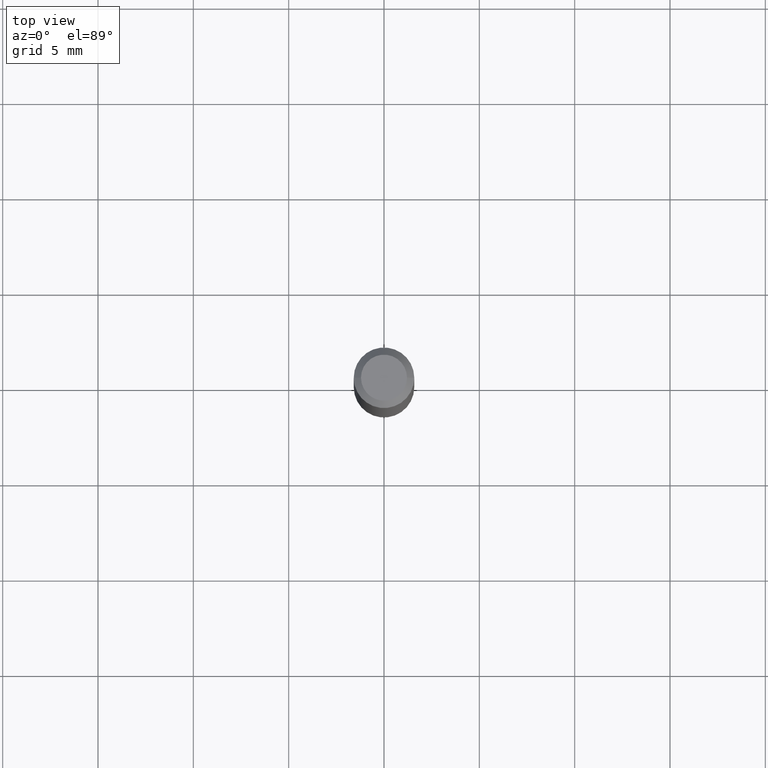
[diagram: clean part render]
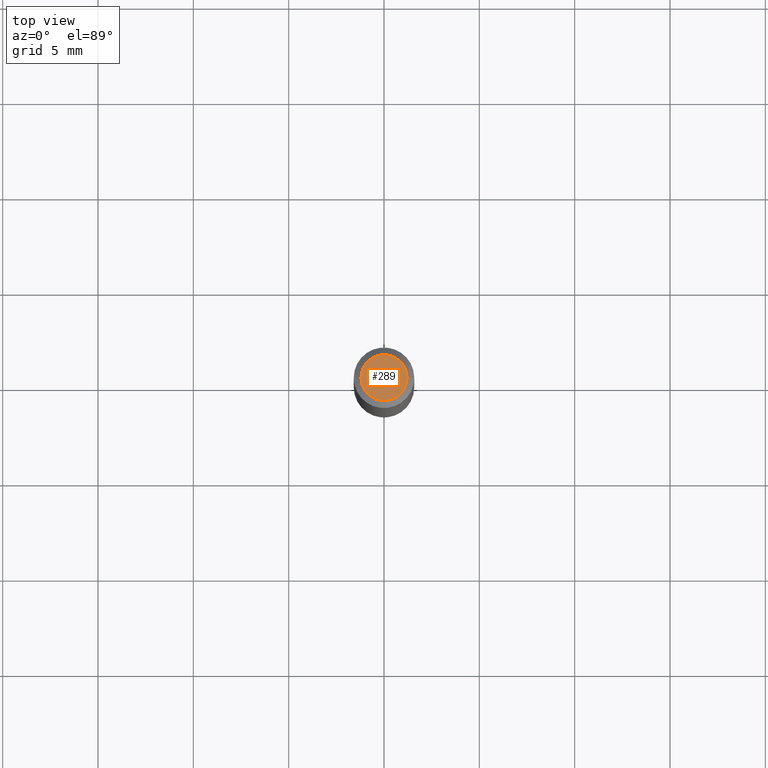
[diagram: same view with one face highlighted and labeled with its STEP entity id]
A machine part, top view. The second image highlights one B-rep face of the part: STEP entity #289.
In plain terms, the highlighted planar face has unit normal (0, -0, -1).
Its self-contained STEP definition (entity closure, byte-faithful):
#45 = CARTESIAN_POINT ( 'NONE',  ( -0.04750000000000000749, 3.578768372314221353E-16, 2.731847993664239060E-16 ) ) ;
#76 = VERTEX_POINT ( 'NONE', #384 ) ;
#107 = CARTESIAN_POINT ( 'NONE',  ( 3.316907271900976589E-16, 0.04750000000000000749, -2.925296391183627249E-17 ) ) ;
#111 = DIRECTION ( 'NONE',  ( 1.000000000000000000, -6.982962677686266711E-15, 4.852736867747365086E-29 ) ) ;
#136 = CIRCLE ( 'NONE', #430, 0.04750000000000000749 ) ;
#145 = PLANE ( 'NONE',  #279 ) ;
#150 = DIRECTION ( 'NONE',  ( -1.000000000000000000, 6.982962677686265922E-15, -4.876176775795935793E-29 ) ) ;
#218 = EDGE_CURVE ( 'NONE', #393, #76, #136, .T. ) ;
#277 = DIRECTION ( 'NONE',  ( 2.438088387897960049E-29, -3.491481338843145188E-15, -1.000000000000000000 ) ) ;
#279 = AXIS2_PLACEMENT_3D ( 'NONE', #107, #277, #150 ) ;
#280 = DIRECTION ( 'NONE',  ( -2.445468806185136597E-29, 3.491481338843145583E-15, 1.000000000000000000 ) ) ;
#289 = ADVANCED_FACE ( 'NONE', ( #357 ), #145, .F. ) ;
#332 = CIRCLE ( 'NONE', #451, 0.04750000000000000749 ) ;
#335 = CARTESIAN_POINT ( 'NONE',  ( -6.680649051745406845E-45, 9.538196290434862081E-31, 2.731847993664263218E-16 ) ) ;
#357 = FACE_OUTER_BOUND ( 'NONE', #463, .T. ) ;
#364 = DIRECTION ( 'NONE',  ( 1.000000000000000000, -6.982962677686266711E-15, 4.852736867747365086E-29 ) ) ;
#384 = CARTESIAN_POINT ( 'NONE',  ( 0.04750000000000000749, -4.035134999187568762E-16, 2.731847993664288856E-16 ) ) ;
#392 = DIRECTION ( 'NONE',  ( -2.445468806185136597E-29, 3.491481338843145583E-15, 1.000000000000000000 ) ) ;
#393 = VERTEX_POINT ( 'NONE', #45 ) ;
#408 = ORIENTED_EDGE ( 'NONE', *, *, #461, .T. ) ;
#428 = ORIENTED_EDGE ( 'NONE', *, *, #218, .T. ) ;
#430 = AXIS2_PLACEMENT_3D ( 'NONE', #462, #392, #111 ) ;
#451 = AXIS2_PLACEMENT_3D ( 'NONE', #335, #280, #364 ) ;
#461 = EDGE_CURVE ( 'NONE', #76, #393, #332, .T. ) ;
#462 = CARTESIAN_POINT ( 'NONE',  ( -6.680649051745406845E-45, 9.538196290434862081E-31, 2.731847993664263218E-16 ) ) ;
#463 = EDGE_LOOP ( 'NONE', ( #428, #408 ) ) ;